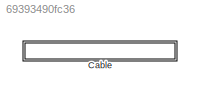
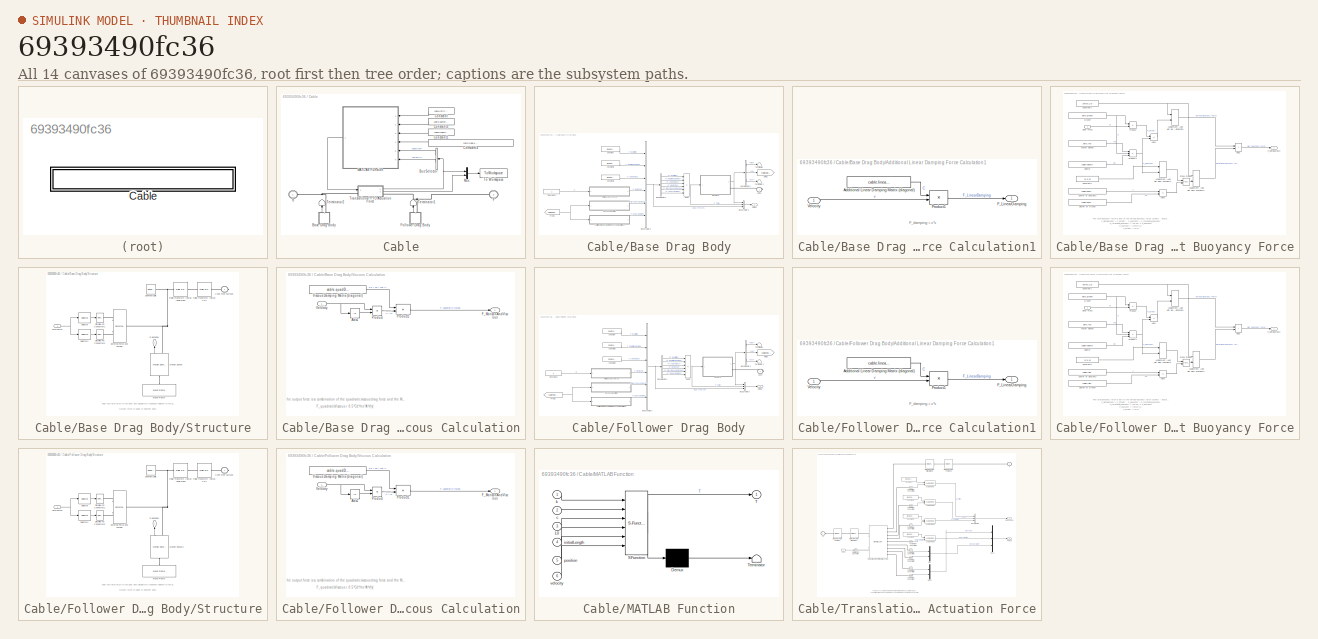
[diagram: thumbnail index - all 14 canvases of the model, root first then tree order]
MODEL slx_69393490fc36
KIND library
CONFIG AbsTol = auto
CONFIG EnableMultiTasking = off
CONFIG FixedStep = auto
CONFIG MaxStep = auto
CONFIG MinStep = auto
CONFIG RelTol = 1e-3
CONFIG SampleTimeConstraint = Unconstrained
CONFIG SolverName = VariableStepAuto
CONFIG StartTime = 0.0
CONFIG StopTime = 10.0
BLOCK [SubSystem] Cable
  AttributesFormatString = %<cable>
  Ports = [0, 0, 0, 0, 0, 1, 1]
  VariantControl = sv_Cable3DOF
BLOCK [PMIOPort] Cable/B
  Side = Left
BLOCK [SubSystem] Cable/Base Drag Body
  NameLocation = right
  Ports = [0, 1, 0, 0, 0, 0, 1]
  VariantControl = sv_b1_dragBody
BLOCK [SubSystem] Cable/Base Drag Body/Additional Linear Damping Force Calculation1
  Ports = [1, 1]
BLOCK [Constant] Cable/Base Drag Body/Additional Linear Damping Force Calculation1/Additional Linear Damping Matrix (diagonal)
  Value = cable.linearDamping
BLOCK [Outport] Cable/Base Drag Body/Additional Linear Damping Force Calculation1/F_LinearDamping
BLOCK [Product] Cable/Base Drag Body/Additional Linear Damping Force Calculation1/Product1
  Multiplication = Matrix(*)
  Ports = [2, 1]
BLOCK [Inport] Cable/Base Drag Body/Additional Linear Damping Force Calculation1/Velocity
BLOCK [Constant] Cable/Base Drag Body/Body Mass
BLOCK [BusCreator] Cable/Base Drag Body/Bus Creator2
  DisplayOption = bar
  InheritFromInputs = on
  Inputs = 6
  Ports = [6, 1]
BLOCK [BusCreator] Cable/Base Drag Body/Bus Creator3
  DisplayOption = bar
  InheritFromInputs = on
  Inputs = 3
  Ports = [3, 1]
BLOCK [BusSelector] Cable/Base Drag Body/Bus Selector2
  OutputSignals = disp,vel,acc
  Ports = [1, 3]
BLOCK [BusSelector] Cable/Base Drag Body/Bus Selector3
  OutputSignals = F_Excitation,F_RadiationDamping,F_AddedMass,F_Restoring,F_MorrisonAndViscous,F_LinearDamping
  Ports = [1, 6]
BLOCK [PMIOPort] Cable/Base Drag Body/Conn
  Side = Right
BLOCK [Constant] Cable/Base Drag Body/Constant
  Value = [0 0 0 0 0 0]
BLOCK [Constant] Cable/Base Drag Body/Constant1
  Value = [0 0 0 0 0 0]
BLOCK [Constant] Cable/Base Drag Body/Constant2
  Value = [0 0 0 0 0 0]
BLOCK [From] Cable/Base Drag Body/From1
  GotoTag = cableVel1_out2
  TagVisibility = global
BLOCK [Goto] Cable/Base Drag Body/Goto1
  GotoTag = cableVel1_out2
  TagVisibility = global
BLOCK [SubSystem] Cable/Base Drag Body/Net Buoyancy Force
  Ports = [1, 1]
BLOCK [Sum] Cable/Base Drag Body/Net Buoyancy Force/Add1
  IconShape = rectangular
  Inputs = +-
  Ports = [2, 1]
BLOCK [Sum] Cable/Base Drag Body/Net Buoyancy Force/Add2
  IconShape = rectangular
  Ports = [2, 1]
BLOCK [Sum] Cable/Base Drag Body/Net Buoyancy Force/Add3
  IconShape = rectangular
  Inputs = +-
  Ports = [2, 1]
BLOCK [Assignment] Cable/Base Drag Body/Net Buoyancy Force/Assignment (Add Net Bouyancy Force to Z-Direction)
  IndexOptions = Index vector (dialog)
  Indices = 3
  OutputSizes = 1
  Ports = [2, 1]
BLOCK [Assignment] Cable/Base Drag Body/Net Buoyancy Force/Assignment (Add Net Bouyancy Force to Z-Direction)1
  IndexOptions = Index vector (dialog)
  Indices = 3
  OutputSizes = 1
  Ports = [2, 1]
BLOCK [Assignment] Cable/Base Drag Body/Net Buoyancy Force/Assignment (Add Net Bouyancy Force to Z-Direction)2
  IndexOptions = Index vector (dialog)
  Indices = 4:6
  OutputSizes = 1
  Ports = [2, 1]
BLOCK [Inport] Cable/Base Drag Body/Net Buoyancy Force/Body Mass
BLOCK [Constant] Cable/Base Drag Body/Net Buoyancy Force/Center of Buoyancy
  Value = cable.base.centerBuoyancy
BLOCK [Constant] Cable/Base Drag Body/Net Buoyancy Force/Center of Gravity
  Value = cable.base.centerGravity
BLOCK [Constant] Cable/Base Drag Body/Net Buoyancy Force/Constant1
  Value = zeros(1,6)
BLOCK [Constant] Cable/Base Drag Body/Net Buoyancy Force/Constant2
  Value = [0 0 0]
BLOCK [Reference] Cable/Base Drag Body/Net Buoyancy Force/Cross Product  REF=vrlib/Utilities/Cross Product
  Ports = [2, 1]
  SourceBlock = vrlib/Utilities/Cross Product
  SourceType = Cross Product
BLOCK [Outport] Cable/Base Drag Body/Net Buoyancy Force/F_NetBuoyancy
BLOCK [Constant] Cable/Base Drag Body/Net Buoyancy Force/Gravity
  Value = simu.gravity
BLOCK [Product] Cable/Base Drag Body/Net Buoyancy Force/Product
  Ports = [2, 1]
BLOCK [Product] Cable/Base Drag Body/Net Buoyancy Force/Product1
  Inputs = 3
  Ports = [3, 1]
BLOCK [Constant] Cable/Base Drag Body/Net Buoyancy Force/Volume
  Value = cable.volume
BLOCK [Constant] Cable/Base Drag Body/Net Buoyancy Force/Water Density
  Value = simu.rho
BLOCK [Outport] Cable/Base Drag Body/Output
BLOCK [SubSystem] Cable/Base Drag Body/Structure
  Ports = [1, 1, 0, 0, 0, 0, 1]
BLOCK [PMIOPort] Cable/Base Drag Body/Structure/Conn Free Surface
  Side = Right
BLOCK [Reference] Cable/Base Drag Body/Structure/External Force and Torque  REF=sm_lib/Forces and
Torques/External Force
and Torque
  Ports = [0, 0, 0, 0, 0, 2, 1]
  SourceBlock = sm_lib/Forces and\nTorques/External Force\nand Torque
  SourceType = External Force\nand Torque
BLOCK [Reference] Cable/Base Drag Body/Structure/Motion Sensor  REF=WECSim_Lib_Body_Elements/Rigid Body/Hydrodynamic Body/Structure/Motion Sensor
  NameLocation = left
  Ports = [0, 1, 0, 0, 0, 1, 1]
  SourceBlock = WECSim_Lib_Body_Elements/Rigid Body/Hydrodynamic Body/Structure/Motion Sensor
  SourceType = SubSystem
BLOCK [Outport] Cable/Base Drag Body/Structure/Response
  NameLocation = left
BLOCK [Reference] Cable/Base Drag Body/Structure/Rigid Transform (Setup CG)  REF=sm_lib/Frames and
Transforms/Rigid
Transform
  Ports = [0, 0, 0, 0, 0, 1, 1]
  SourceBlock = sm_lib/Frames and\nTransforms/Rigid\nTransform
  SourceType = Rigid\nTransform
BLOCK [Reference] Cable/Base Drag Body/Structure/Rigid Transform (Setup Initial Disp)  REF=sm_lib/Frames and
Transforms/Rigid
Transform
  Ports = [0, 0, 0, 0, 0, 1, 1]
  SourceBlock = sm_lib/Frames and\nTransforms/Rigid\nTransform
  SourceType = Rigid\nTransform
BLOCK [Selector] Cable/Base Drag Body/Structure/Selector
  IndexOptions = Index vector (dialog)
  Indices = [1:3]
  InputPortWidth = 6
  OutputSizes = 1
  Ports = [1, 1]
BLOCK [Selector] Cable/Base Drag Body/Structure/Selector1
  IndexOptions = Index vector (dialog)
  Indices = [4:6]
  InputPortWidth = 6
  OutputSizes = 1
  Ports = [1, 1]
BLOCK [Reference] Cable/Base Drag Body/Structure/Simulink-PS Converter1  REF=nesl_utility/Simulink-PS
Converter
  Ports = [1, 0, 0, 0, 0, 0, 1]
  SourceBlock = nesl_utility/Simulink-PS\nConverter
  SourceType = Simulink-PS\nConverter
BLOCK [Reference] Cable/Base Drag Body/Structure/Simulink-PS Converter2  REF=nesl_utility/Simulink-PS
Converter
  Ports = [1, 0, 0, 0, 0, 0, 1]
  SourceBlock = nesl_utility/Simulink-PS\nConverter
  SourceType = Simulink-PS\nConverter
BLOCK [Reference] Cable/Base Drag Body/Structure/Spherical Solid  REF=sm_lib/Body Elements/Spherical Solid
  Ports = [0, 0, 0, 0, 0, 0, 1]
  SourceBlock = sm_lib/Body Elements/Spherical Solid
  SourceType = Spherical Solid
BLOCK [Inport] Cable/Base Drag Body/Structure/Total Force
BLOCK [Reference] Cable/Base Drag Body/Structure/World Frame  REF=sm_lib/Frames and
Transforms/World Frame
  NameLocation = right
  Ports = [0, 0, 0, 0, 0, 0, 1]
  SourceBlock = sm_lib/Frames and\nTransforms/World Frame
  SourceType = World Frame
BLOCK [Sum] Cable/Base Drag Body/Sum1
  IconShape = rectangular
  Inputs = +-----
  Ports = [6, 1]
BLOCK [Terminator] Cable/Base Drag Body/Terminator
BLOCK [Terminator] Cable/Base Drag Body/Terminator1
BLOCK [SubSystem] Cable/Base Drag Body/Viscous Calculation
  Ports = [1, 1]
BLOCK [Abs] Cable/Base Drag Body/Viscous Calculation/Abs1
  SaturateOnIntegerOverflow = off
BLOCK [Outport] Cable/Base Drag Body/Viscous Calculation/F_MorisonAndViscous
BLOCK [Product] Cable/Base Drag Body/Viscous Calculation/Product
  Ports = [2, 1]
BLOCK [Product] Cable/Base Drag Body/Viscous Calculation/Product1
  Multiplication = Matrix(*)
  Ports = [2, 1]
BLOCK [Inport] Cable/Base Drag Body/Viscous Calculation/Velocity
BLOCK [Constant] Cable/Base Drag Body/Viscous Calculation/Viscous Damping Matrix (diagonal) 
  Value = cable.quadDrag.drag
BLOCK [BusSelector] Cable/Bus Selector
  NameLocation = top
  OutputSignals = position,velocity
  Ports = [1, 2]
BLOCK [Constant] Cable/Constant
  NameLocation = top
  Value = cable.stiffness
BLOCK [Constant] Cable/Constant1
  NameLocation = top
  Value = cable.cableLength
BLOCK [Constant] Cable/Constant2
  NameLocation = top
  Value = cable.damping
BLOCK [Constant] Cable/Constant4
  NameLocation = top
  Value = norm(cable.base.location - cable.follower.location)
BLOCK [PMIOPort] Cable/F
  Port = 2
  Side = Right
BLOCK [SubSystem] Cable/Follower Drag Body
  NameLocation = right
  Ports = [0, 1, 0, 0, 0, 0, 1]
  VariantControl = sv_b1_dragBody
BLOCK [SubSystem] Cable/Follower Drag Body/Additional Linear Damping Force Calculation1
  Ports = [1, 1]
BLOCK [Constant] Cable/Follower Drag Body/Additional Linear Damping Force Calculation1/Additional Linear Damping Matrix (diagonal)
  Value = cable.linearDamping
BLOCK [Outport] Cable/Follower Drag Body/Additional Linear Damping Force Calculation1/F_LinearDamping
BLOCK [Product] Cable/Follower Drag Body/Additional Linear Damping Force Calculation1/Product1
  Multiplication = Matrix(*)
  Ports = [2, 1]
BLOCK [Inport] Cable/Follower Drag Body/Additional Linear Damping Force Calculation1/Velocity
BLOCK [Constant] Cable/Follower Drag Body/Body Mass
BLOCK [BusCreator] Cable/Follower Drag Body/Bus Creator2
  DisplayOption = bar
  InheritFromInputs = on
  Inputs = 6
  Ports = [6, 1]
BLOCK [BusCreator] Cable/Follower Drag Body/Bus Creator3
  DisplayOption = bar
  InheritFromInputs = on
  Inputs = 3
  Ports = [3, 1]
BLOCK [BusSelector] Cable/Follower Drag Body/Bus Selector2
  OutputSignals = disp,vel,acc
  Ports = [1, 3]
BLOCK [BusSelector] Cable/Follower Drag Body/Bus Selector3
  OutputSignals = F_Excitation,F_RadiationDamping,F_AddedMass,F_Restoring,F_MorrisonAndViscous,F_LinearDamping
  Ports = [1, 6]
BLOCK [PMIOPort] Cable/Follower Drag Body/Conn
  Side = Right
BLOCK [Constant] Cable/Follower Drag Body/Constant
  Value = [0 0 0 0 0 0]
BLOCK [Constant] Cable/Follower Drag Body/Constant1
  Value = [0 0 0 0 0 0]
BLOCK [Constant] Cable/Follower Drag Body/Constant2
  Value = [0 0 0 0 0 0]
BLOCK [From] Cable/Follower Drag Body/From1
  GotoTag = cableVel1_out1
  TagVisibility = global
BLOCK [Goto] Cable/Follower Drag Body/Goto1
  GotoTag = cableVel1_out1
  TagVisibility = global
BLOCK [SubSystem] Cable/Follower Drag Body/Net Buoyancy Force
  Ports = [1, 1]
BLOCK [Sum] Cable/Follower Drag Body/Net Buoyancy Force/Add1
  IconShape = rectangular
  Inputs = +-
  Ports = [2, 1]
BLOCK [Sum] Cable/Follower Drag Body/Net Buoyancy Force/Add2
  IconShape = rectangular
  Ports = [2, 1]
BLOCK [Sum] Cable/Follower Drag Body/Net Buoyancy Force/Add3
  IconShape = rectangular
  Inputs = +-
  Ports = [2, 1]
BLOCK [Assignment] Cable/Follower Drag Body/Net Buoyancy Force/Assignment (Add Net Bouyancy Force to Z-Direction)
  IndexOptions = Index vector (dialog)
  Indices = 3
  OutputSizes = 1
  Ports = [2, 1]
BLOCK [Assignment] Cable/Follower Drag Body/Net Buoyancy Force/Assignment (Add Net Bouyancy Force to Z-Direction)1
  IndexOptions = Index vector (dialog)
  Indices = 3
  OutputSizes = 1
  Ports = [2, 1]
BLOCK [Assignment] Cable/Follower Drag Body/Net Buoyancy Force/Assignment (Add Net Bouyancy Force to Z-Direction)2
  IndexOptions = Index vector (dialog)
  Indices = 4:6
  OutputSizes = 1
  Ports = [2, 1]
BLOCK [Inport] Cable/Follower Drag Body/Net Buoyancy Force/Body Mass
BLOCK [Constant] Cable/Follower Drag Body/Net Buoyancy Force/Center of Buoyancy
  Value = cable.follower.centerBuoyancy
BLOCK [Constant] Cable/Follower Drag Body/Net Buoyancy Force/Center of Gravity
  Value = cable.follower.centerGravity
BLOCK [Constant] Cable/Follower Drag Body/Net Buoyancy Force/Constant1
  Value = zeros(1,6)
BLOCK [Constant] Cable/Follower Drag Body/Net Buoyancy Force/Constant2
  Value = [0 0 0]
BLOCK [Reference] Cable/Follower Drag Body/Net Buoyancy Force/Cross Product  REF=vrlib/Utilities/Cross Product
  Ports = [2, 1]
  SourceBlock = vrlib/Utilities/Cross Product
  SourceType = Cross Product
BLOCK [Outport] Cable/Follower Drag Body/Net Buoyancy Force/F_NetBuoyancy
BLOCK [Constant] Cable/Follower Drag Body/Net Buoyancy Force/Gravity
  Value = simu.gravity
BLOCK [Product] Cable/Follower Drag Body/Net Buoyancy Force/Product
  Ports = [2, 1]
BLOCK [Product] Cable/Follower Drag Body/Net Buoyancy Force/Product1
  Inputs = 3
  Ports = [3, 1]
BLOCK [Constant] Cable/Follower Drag Body/Net Buoyancy Force/Volume
  Value = cable.volume
BLOCK [Constant] Cable/Follower Drag Body/Net Buoyancy Force/Water Density
  Value = simu.rho
BLOCK [Outport] Cable/Follower Drag Body/Output
BLOCK [SubSystem] Cable/Follower Drag Body/Structure
  Ports = [1, 1, 0, 0, 0, 0, 1]
BLOCK [PMIOPort] Cable/Follower Drag Body/Structure/Conn Free Surface
  Side = Right
BLOCK [Reference] Cable/Follower Drag Body/Structure/External Force and Torque  REF=sm_lib/Forces and
Torques/External Force
and Torque
  Ports = [0, 0, 0, 0, 0, 2, 1]
  SourceBlock = sm_lib/Forces and\nTorques/External Force\nand Torque
  SourceType = External Force\nand Torque
BLOCK [Reference] Cable/Follower Drag Body/Structure/Motion Sensor1  REF=WECSim_Lib_Body_Elements/Rigid Body/Hydrodynamic Body/Structure/Motion Sensor
  NameLocation = left
  Ports = [0, 1, 0, 0, 0, 1, 1]
  SourceBlock = WECSim_Lib_Body_Elements/Rigid Body/Hydrodynamic Body/Structure/Motion Sensor
  SourceType = SubSystem
BLOCK [Outport] Cable/Follower Drag Body/Structure/Response
  NameLocation = left
BLOCK [Reference] Cable/Follower Drag Body/Structure/Rigid Transform (Setup CG)  REF=sm_lib/Frames and
Transforms/Rigid
Transform
  Ports = [0, 0, 0, 0, 0, 1, 1]
  SourceBlock = sm_lib/Frames and\nTransforms/Rigid\nTransform
  SourceType = Rigid\nTransform
BLOCK [Reference] Cable/Follower Drag Body/Structure/Rigid Transform (Setup Initial Disp)  REF=sm_lib/Frames and
Transforms/Rigid
Transform
  Ports = [0, 0, 0, 0, 0, 1, 1]
  SourceBlock = sm_lib/Frames and\nTransforms/Rigid\nTransform
  SourceType = Rigid\nTransform
BLOCK [Selector] Cable/Follower Drag Body/Structure/Selector
  IndexOptions = Index vector (dialog)
  Indices = [1:3]
  InputPortWidth = 6
  OutputSizes = 1
  Ports = [1, 1]
BLOCK [Selector] Cable/Follower Drag Body/Structure/Selector1
  IndexOptions = Index vector (dialog)
  Indices = [4:6]
  InputPortWidth = 6
  OutputSizes = 1
  Ports = [1, 1]
BLOCK [Reference] Cable/Follower Drag Body/Structure/Simulink-PS Converter1  REF=nesl_utility/Simulink-PS
Converter
  Ports = [1, 0, 0, 0, 0, 0, 1]
  SourceBlock = nesl_utility/Simulink-PS\nConverter
  SourceType = Simulink-PS\nConverter
BLOCK [Reference] Cable/Follower Drag Body/Structure/Simulink-PS Converter2  REF=nesl_utility/Simulink-PS
Converter
  Ports = [1, 0, 0, 0, 0, 0, 1]
  SourceBlock = nesl_utility/Simulink-PS\nConverter
  SourceType = Simulink-PS\nConverter
BLOCK [Reference] Cable/Follower Drag Body/Structure/Spherical Solid  REF=sm_lib/Body Elements/Spherical Solid
  Ports = [0, 0, 0, 0, 0, 0, 1]
  SourceBlock = sm_lib/Body Elements/Spherical Solid
  SourceType = Spherical Solid
BLOCK [Inport] Cable/Follower Drag Body/Structure/Total Force
BLOCK [Reference] Cable/Follower Drag Body/Structure/World Frame  REF=sm_lib/Frames and
Transforms/World Frame
  NameLocation = right
  Ports = [0, 0, 0, 0, 0, 0, 1]
  SourceBlock = sm_lib/Frames and\nTransforms/World Frame
  SourceType = World Frame
BLOCK [Sum] Cable/Follower Drag Body/Sum1
  IconShape = rectangular
  Inputs = +-----
  Ports = [6, 1]
BLOCK [Terminator] Cable/Follower Drag Body/Terminator
BLOCK [Terminator] Cable/Follower Drag Body/Terminator1
BLOCK [SubSystem] Cable/Follower Drag Body/Viscous Calculation
  Ports = [1, 1]
BLOCK [Abs] Cable/Follower Drag Body/Viscous Calculation/Abs1
  SaturateOnIntegerOverflow = off
BLOCK [Outport] Cable/Follower Drag Body/Viscous Calculation/F_MorisonAndViscous
BLOCK [Product] Cable/Follower Drag Body/Viscous Calculation/Product
  Ports = [2, 1]
BLOCK [Product] Cable/Follower Drag Body/Viscous Calculation/Product1
  Multiplication = Matrix(*)
  Ports = [2, 1]
BLOCK [Inport] Cable/Follower Drag Body/Viscous Calculation/Velocity
BLOCK [Constant] Cable/Follower Drag Body/Viscous Calculation/Viscous Damping Matrix (diagonal) 
  Value = cable.quadDrag.drag
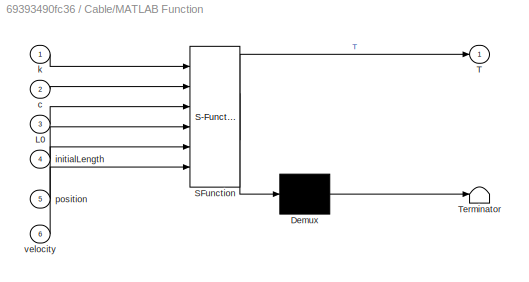
BLOCK [SubSystem] Cable/MATLAB Function
  ErrorFcn = Stateflow.Translate.translate
  NameLocation = top
  PermitHierarchicalResolution = ExplicitOnly
  Ports = [6, 1]
  SFBlockType = MATLAB Function
  TreatAsAtomicUnit = on
BLOCK [Demux] Cable/MATLAB Function/ Demux 
  Outputs = 1
  Ports = [1, 1]
BLOCK [S-Function] Cable/MATLAB Function/ SFunction 
  EnableBusSupport = off
  FunctionName = sf_sfun
  PortCounts = [6 2]
  Ports = [6, 2]
  SFcnIsStateOwnerBlock = off
  SFunctionDeploymentMode = off
  Tag = Stateflow S-Function 17
BLOCK [Terminator] Cable/MATLAB Function/ Terminator 
BLOCK [Inport] Cable/MATLAB Function/L0
  Port = 3
BLOCK [Outport] Cable/MATLAB Function/T
BLOCK [Inport] Cable/MATLAB Function/c
  Port = 2
BLOCK [Inport] Cable/MATLAB Function/initialLength
  Port = 4
BLOCK [Inport] Cable/MATLAB Function/k
BLOCK [Inport] Cable/MATLAB Function/position
  Port = 5
BLOCK [Inport] Cable/MATLAB Function/velocity
  Port = 6
BLOCK [Mux] Cable/Mux
  DisplayOption = bar
  Inputs = 2
  Ports = [2, 1]
BLOCK [Terminator] Cable/Terminator1
  NameLocation = right
BLOCK [Terminator] Cable/Terminator2
  NameLocation = right
BLOCK [ToWorkspace] Cable/To Workspace
  MaxDataPoints = inf
  Ports = [1]
  SampleTime = simu.dtOut
  SaveFormat = Structure With Time
  VariableName = cable1_out
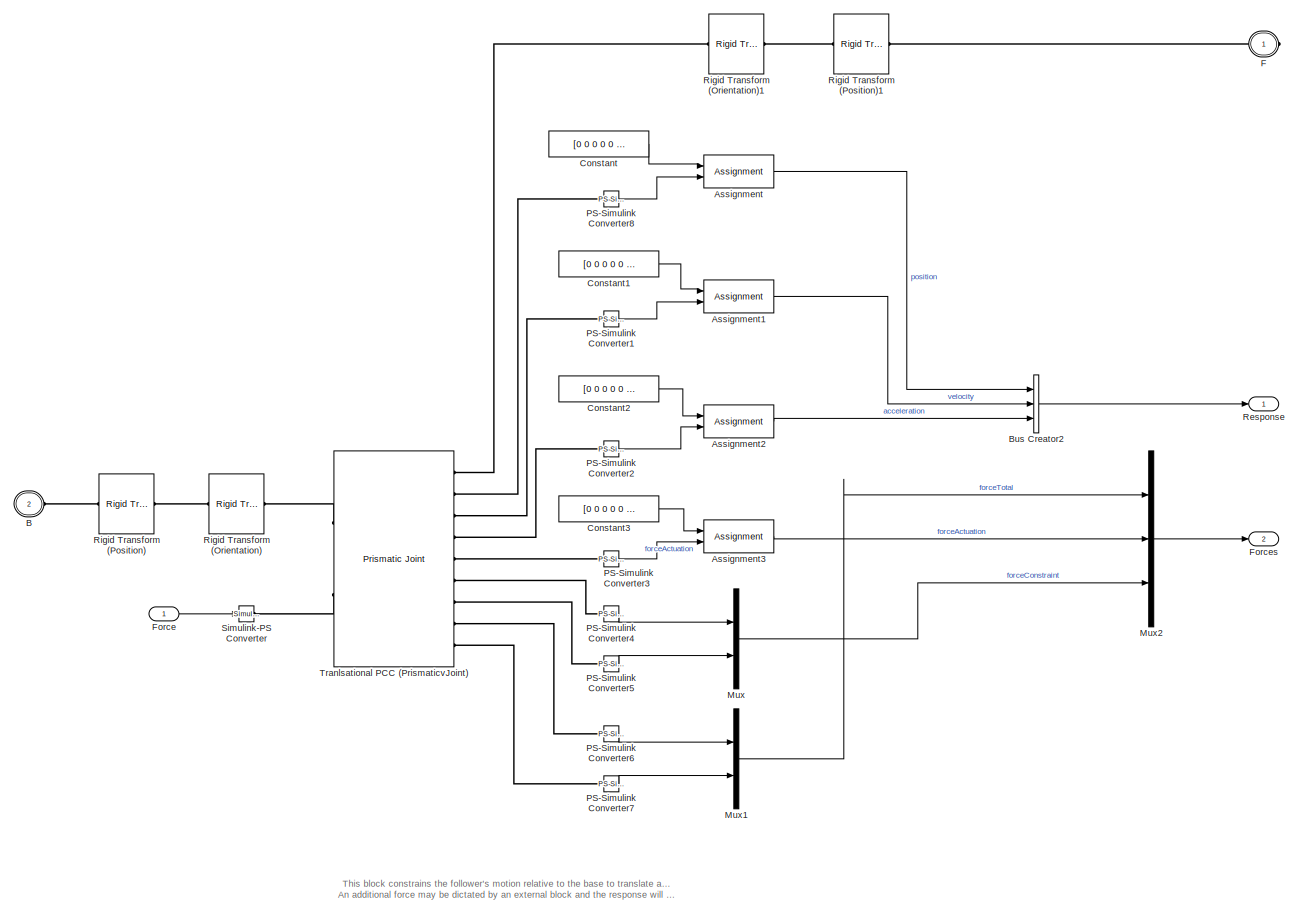
[diagram: Cable/Translational PTO Actuation Force - part 1/1, most of the canvas]
BLOCK [SubSystem] Cable/Translational PTO Actuation Force
  AttributesFormatString = %<pto>
  Ports = [1, 2, 0, 0, 0, 1, 1]
BLOCK [Assignment] Cable/Translational PTO Actuation Force/Assignment
  IndexOptions = Index vector (dialog)
  Indices = 3
  OutputSizes = 1
  Ports = [2, 1]
BLOCK [Assignment] Cable/Translational PTO Actuation Force/Assignment1
  IndexOptions = Index vector (dialog)
  Indices = 3
  OutputSizes = 1
  Ports = [2, 1]
BLOCK [Assignment] Cable/Translational PTO Actuation Force/Assignment2
  IndexOptions = Index vector (dialog)
  Indices = 3
  OutputSizes = 1
  Ports = [2, 1]
BLOCK [Assignment] Cable/Translational PTO Actuation Force/Assignment3
  IndexOptions = Index vector (dialog)
  Indices = 3
  OutputSizes = 1
  Ports = [2, 1]
BLOCK [PMIOPort] Cable/Translational PTO Actuation Force/B
  Port = 2
  Side = Left
BLOCK [BusCreator] Cable/Translational PTO Actuation Force/Bus Creator2
  DisplayOption = bar
  InheritFromInputs = on
  Inputs = 3
  Ports = [3, 1]
BLOCK [Constant] Cable/Translational PTO Actuation Force/Constant
  Value = [0 0 0 0 0 0]
BLOCK [Constant] Cable/Translational PTO Actuation Force/Constant1
  Value = [0 0 0 0 0 0]
BLOCK [Constant] Cable/Translational PTO Actuation Force/Constant2
  Value = [0 0 0 0 0 0]
BLOCK [Constant] Cable/Translational PTO Actuation Force/Constant3
  Value = [0 0 0 0 0 0]
BLOCK [PMIOPort] Cable/Translational PTO Actuation Force/F
  Side = Right
BLOCK [Inport] Cable/Translational PTO Actuation Force/Force
BLOCK [Outport] Cable/Translational PTO Actuation Force/Forces 
  Port = 2
BLOCK [Mux] Cable/Translational PTO Actuation Force/Mux
  DisplayOption = bar
  Inputs = 2
  Ports = [2, 1]
BLOCK [Mux] Cable/Translational PTO Actuation Force/Mux1
  DisplayOption = bar
  Inputs = 2
  Ports = [2, 1]
BLOCK [Mux] Cable/Translational PTO Actuation Force/Mux2
  DisplayOption = bar
  Inputs = 3
  Ports = [3, 1]
BLOCK [Reference] Cable/Translational PTO Actuation Force/PS-Simulink Converter1  REF=nesl_utility/PS-Simulink
Converter
  Ports = [0, 1, 0, 0, 0, 1]
  SourceBlock = nesl_utility/PS-Simulink\nConverter
  SourceType = PS-Simulink\nConverter
BLOCK [Reference] Cable/Translational PTO Actuation Force/PS-Simulink Converter2  REF=nesl_utility/PS-Simulink
Converter
  Ports = [0, 1, 0, 0, 0, 1]
  SourceBlock = nesl_utility/PS-Simulink\nConverter
  SourceType = PS-Simulink\nConverter
BLOCK [Reference] Cable/Translational PTO Actuation Force/PS-Simulink Converter3  REF=nesl_utility/PS-Simulink
Converter
  Ports = [0, 1, 0, 0, 0, 1]
  SourceBlock = nesl_utility/PS-Simulink\nConverter
  SourceType = PS-Simulink\nConverter
BLOCK [Reference] Cable/Translational PTO Actuation Force/PS-Simulink Converter4  REF=nesl_utility/PS-Simulink
Converter
  Ports = [0, 1, 0, 0, 0, 1]
  SourceBlock = nesl_utility/PS-Simulink\nConverter
  SourceType = PS-Simulink\nConverter
BLOCK [Reference] Cable/Translational PTO Actuation Force/PS-Simulink Converter5  REF=nesl_utility/PS-Simulink
Converter
  Ports = [0, 1, 0, 0, 0, 1]
  SourceBlock = nesl_utility/PS-Simulink\nConverter
  SourceType = PS-Simulink\nConverter
BLOCK [Reference] Cable/Translational PTO Actuation Force/PS-Simulink Converter6  REF=nesl_utility/PS-Simulink
Converter
  Ports = [0, 1, 0, 0, 0, 1]
  SourceBlock = nesl_utility/PS-Simulink\nConverter
  SourceType = PS-Simulink\nConverter
BLOCK [Reference] Cable/Translational PTO Actuation Force/PS-Simulink Converter7  REF=nesl_utility/PS-Simulink
Converter
  Ports = [0, 1, 0, 0, 0, 1]
  SourceBlock = nesl_utility/PS-Simulink\nConverter
  SourceType = PS-Simulink\nConverter
BLOCK [Reference] Cable/Translational PTO Actuation Force/PS-Simulink Converter8  REF=nesl_utility/PS-Simulink
Converter
  Ports = [0, 1, 0, 0, 0, 1]
  SourceBlock = nesl_utility/PS-Simulink\nConverter
  SourceType = PS-Simulink\nConverter
BLOCK [Outport] Cable/Translational PTO Actuation Force/Response
BLOCK [Reference] Cable/Translational PTO Actuation Force/Rigid Transform (Orientation)  REF=sm_lib/Frames and
Transforms/Rigid
Transform
  Ports = [0, 0, 0, 0, 0, 1, 1]
  SourceBlock = sm_lib/Frames and\nTransforms/Rigid\nTransform
  SourceType = Rigid\nTransform
BLOCK [Reference] Cable/Translational PTO Actuation Force/Rigid Transform (Orientation)1  REF=sm_lib/Frames and
Transforms/Rigid
Transform
  Ports = [0, 0, 0, 0, 0, 1, 1]
  SourceBlock = sm_lib/Frames and\nTransforms/Rigid\nTransform
  SourceType = Rigid\nTransform
BLOCK [Reference] Cable/Translational PTO Actuation Force/Rigid Transform (Position)  REF=sm_lib/Frames and
Transforms/Rigid
Transform
  Ports = [0, 0, 0, 0, 0, 1, 1]
  SourceBlock = sm_lib/Frames and\nTransforms/Rigid\nTransform
  SourceType = Rigid\nTransform
BLOCK [Reference] Cable/Translational PTO Actuation Force/Rigid Transform (Position)1  REF=sm_lib/Frames and
Transforms/Rigid
Transform
  Ports = [0, 0, 0, 0, 0, 1, 1]
  SourceBlock = sm_lib/Frames and\nTransforms/Rigid\nTransform
  SourceType = Rigid\nTransform
BLOCK [Reference] Cable/Translational PTO Actuation Force/Simulink-PS Converter  REF=nesl_utility/Simulink-PS
Converter
  Ports = [1, 0, 0, 0, 0, 0, 1]
  SourceBlock = nesl_utility/Simulink-PS\nConverter
  SourceType = Simulink-PS\nConverter
BLOCK [Reference] Cable/Translational PTO Actuation Force/Tranlsational PCC (PrismaticvJoint)  REF=sm_lib/Joints/Prismatic
Joint
  Ports = [0, 0, 0, 0, 0, 2, 9]
  SourceBlock = sm_lib/Joints/Prismatic\nJoint
  SourceType = Prismatic\nJoint
ANNOTATION Cable/Base Drag Body/Additional Linear Damping Force Calculation1: F_damping = c*v
ANNOTATION Cable/Base Drag Body/Net Buoyancy Force: The total buoyancy force is due to the vertical buoyancy force (gravity - buoyancy) and a rotational buoyancy force if the center of gravity is not aligned with the center of buoyancy. F_NetBuoyancy = F_gravity - F_buoyancy + F_rotational_buoyancy F_rotational_buoyancy = (cb-cg) x F_buoyancy F_buoyancy = rho*g*V_0 F_gravity = m*g
ANNOTATION Cable/Base Drag Body/Structure: Apply the total force to the body and calculate its response relative to the global reference frame. Output force to apply to another body.
ANNOTATION Cable/Base Drag Body/Viscous Calculation: The output force is a combination of the quadratic viscous drag force and the Morison element force. F_quadraticViscous = 0.5*Cd*rho*A*v*|v|
ANNOTATION Cable/Follower Drag Body/Additional Linear Damping Force Calculation1: F_damping = c*v
ANNOTATION Cable/Follower Drag Body/Net Buoyancy Force: The total buoyancy force is due to the vertical buoyancy force (gravity - buoyancy) and a rotational buoyancy force if the center of gravity is not aligned with the center of buoyancy. F_NetBuoyancy = F_gravity - F_buoyancy + F_rotational_buoyancy F_rotational_buoyancy = (cb-cg) x F_buoyancy F_buoyancy = rho*g*V_0 F_gravity = m*g
ANNOTATION Cable/Follower Drag Body/Structure: Apply the total force to the body and calculate its response relative to the global reference frame. Output force to apply to another body.
ANNOTATION Cable/Follower Drag Body/Viscous Calculation: The output force is a combination of the quadratic viscous drag force and the Morison element force. F_quadraticViscous = 0.5*Cd*rho*A*v*|v|
ANNOTATION Cable/Translational PTO Actuation Force: This block constrains the follower's motion relative to the base to translate along the PTO's z-axis. The forces required for the constraint and the updated response are output of the joint, converted to Simulink, assigned to the correct dimension for wecSim, and output. An additional force may be dictated by an external block and the response will take this quantity into account.
CHART Cable/MATLAB Function states=1 transitions=1
  STATE_LABEL 'eML_blk_kernel()'
  STATE_LABEL 'SCRIPT:\nfunction T = calcCableTens(k, c, L0, initialLength, position, velocity)\n\nT = calcCableTens(k, c, L0, initialLength, position, velocity);\n\nend\n'
CHART  states=0 transitions=0
